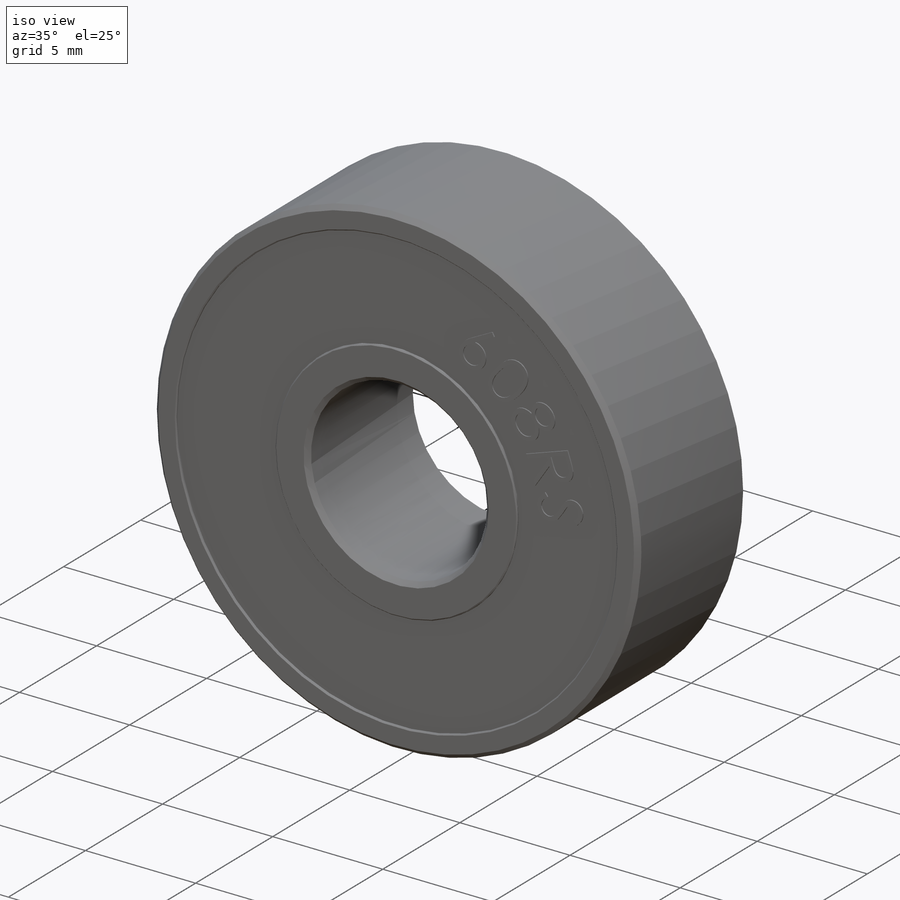
[diagram: iso view]
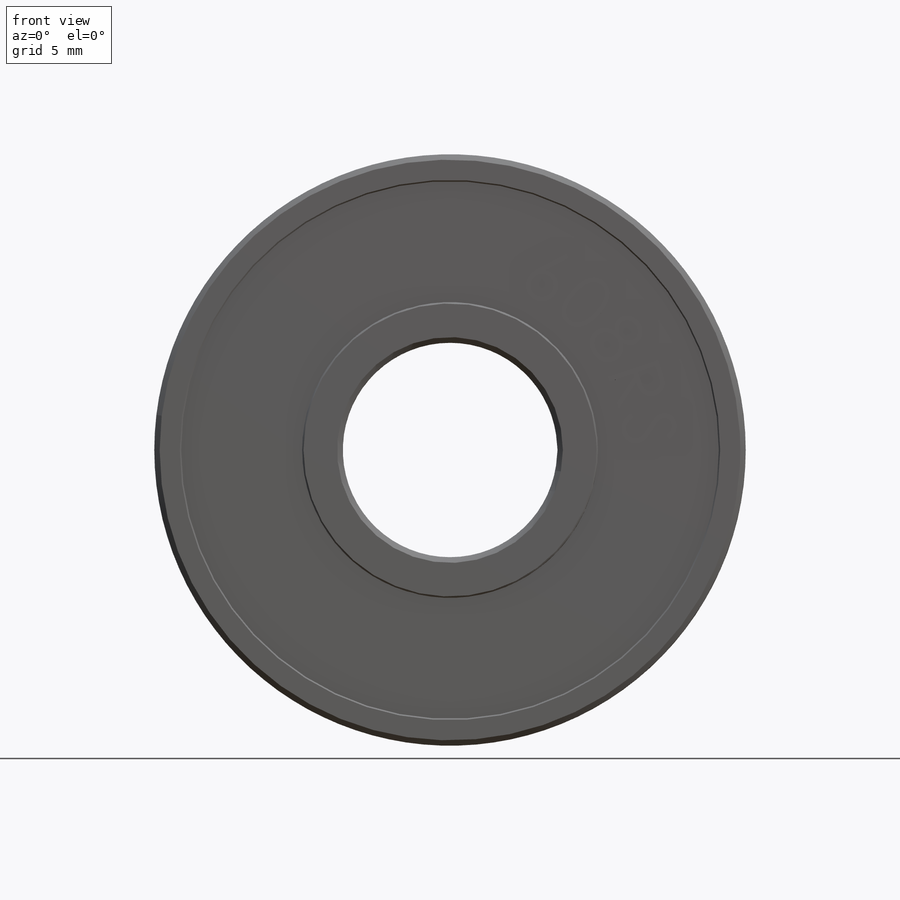
[diagram: front view]
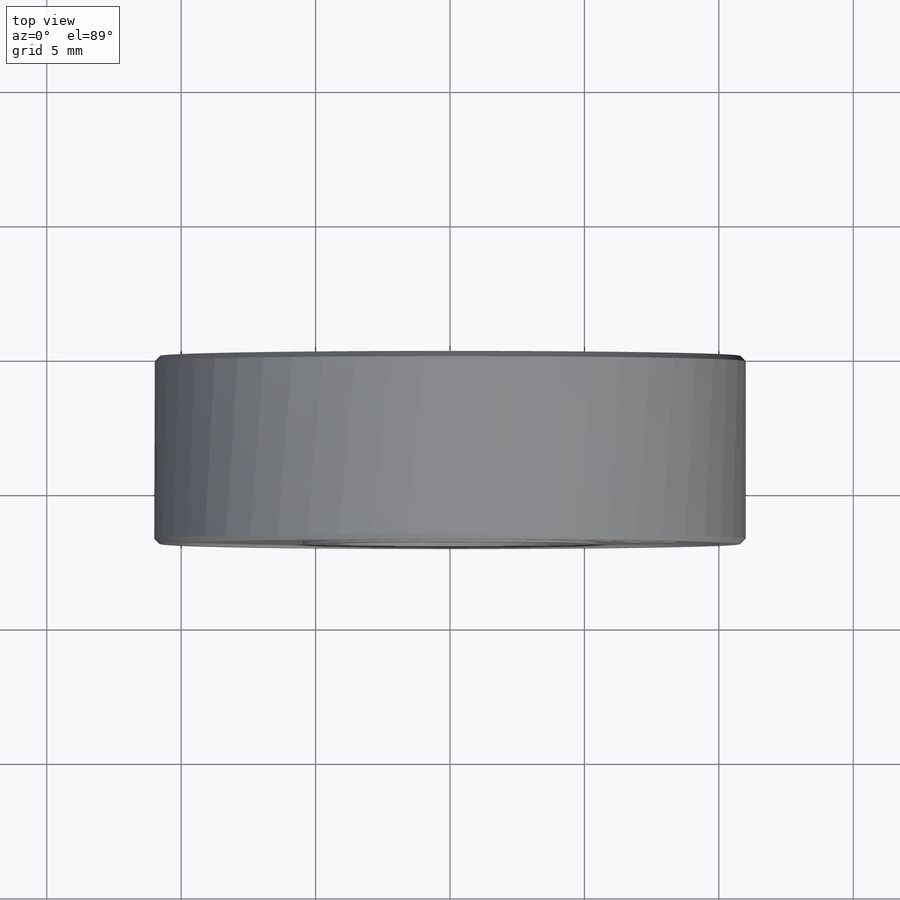
[diagram: top view]
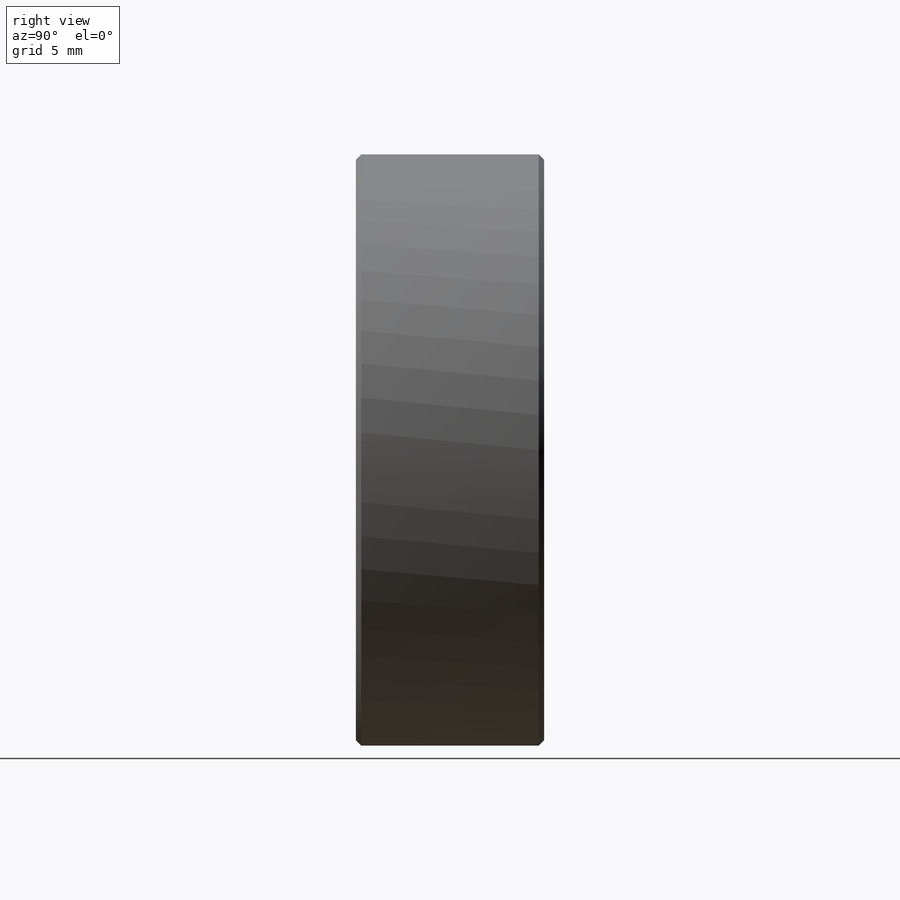
[diagram: right view]
SOLIDWORKS PART (.sldprt)
format: sldprt  version: not decoded by parser v0  size: 539,648 bytes
history: native  units: mm
features: sketch x5, extrude x3, cut_extrude x2, chamfer x2, material x1 (+11 scaffold rows collapsed)
feature tree (24):
  scaffold x11  (default folders/planes/origin — collapsed)
  material  "Material <not specified>"
  sketch  "Sketch1"  dims[D1=~4.35833mm]
  extrude  "Boss-Extrude1"  Depth=7mm
  sketch  "Sketch2"  dims[D1=~10.244996mm]
  cut_extrude  "Cut-Extrude1"  Depth=0.1mm
  cut_extrude  "Cut-Extrude2"  [1 undecoded]
  sketch  "Sketch2<2>"  dims[D1=0.1mm D19=6.9mm]
  chamfer  "Chamfer1"  Distance=0.2mm Angle=45deg
  chamfer  "Chamfer2"  Distance=0.05mm Angle=45deg
  sketch  "Sketch3"  dims[D1=~6.829249mm]
  extrude  "Boss-Extrude2"  Depth=0.05mm
  sketch  "Sketch4"  dims[D1=~7.315651mm]
  extrude  "Boss-Extrude3"  Depth=0.05mm
decode coverage: 11 of 12 modeling features carry decoded parameters
note: ~ marks probable driven/reference dimensions
note: 1 parameter value undecoded
note: suppression state not decoded; provenance and decode notes live in map.json
